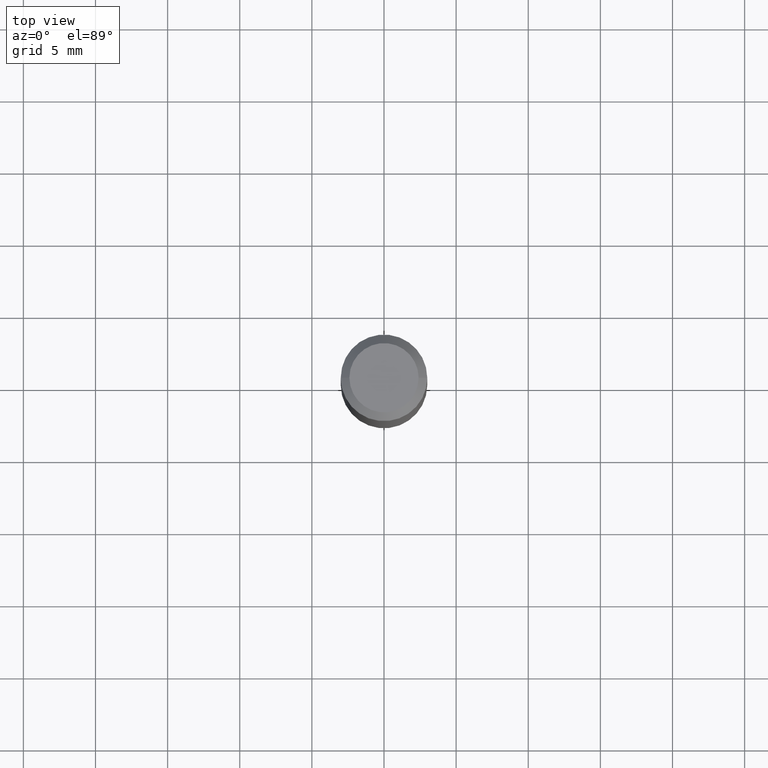
[diagram: clean part render]
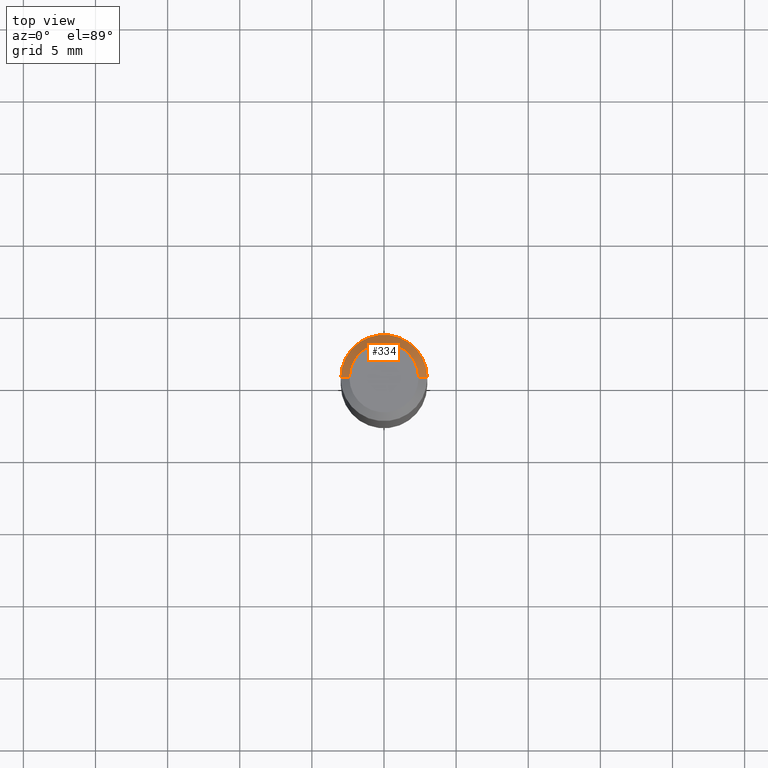
[diagram: same view with one face highlighted and labeled with its STEP entity id]
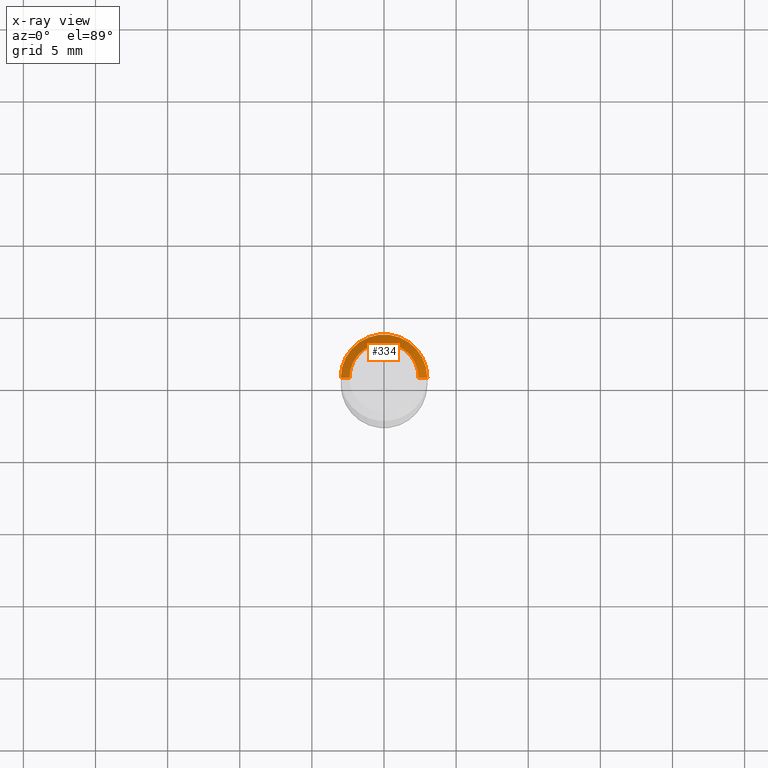
[diagram: x-ray of the same camera — body ghosted, the highlighted face saturated]
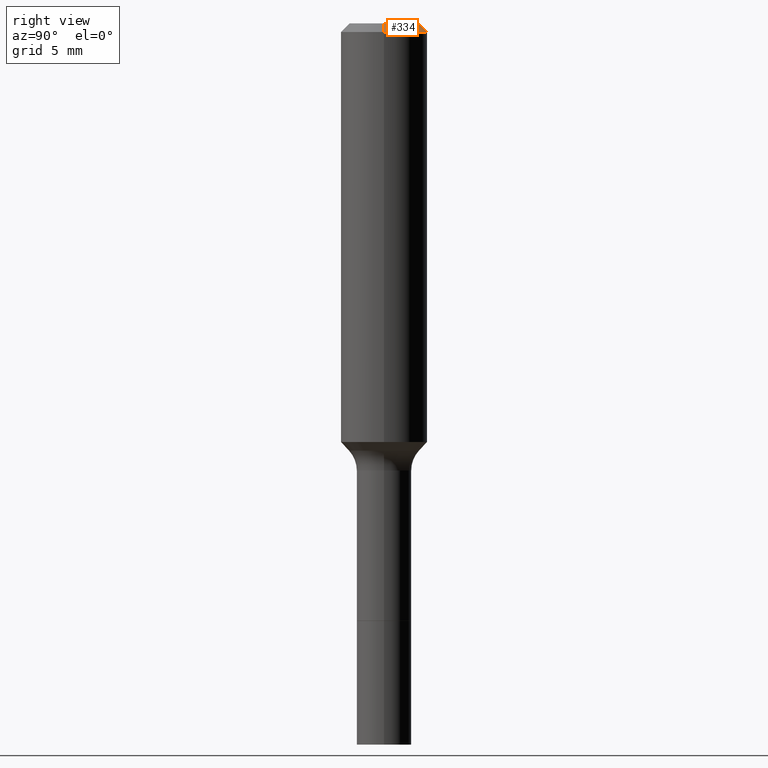
[diagram: same view with one face highlighted and labeled with its STEP entity id]
A machine part, top view. The second image highlights one B-rep face of the part: STEP entity #334.
The next image is the same camera in x-ray: the body ghosted, the highlighted face saturated — about 0% of this face is hidden behind the body in this view.
A second angle (right view) of the same face is appended — the face is thin or edge-on in the first view.
In plain terms, the highlighted conical surface has half-angle 45 deg.
Its self-contained STEP definition (entity closure, byte-faithful):
#10 = ORIENTED_EDGE ( 'NONE', *, *, #16, .T. ) ;
#13 = EDGE_CURVE ( 'NONE', #159, #407, #219, .T. ) ;
#16 = EDGE_CURVE ( 'NONE', #35, #407, #396, .T. ) ;
#20 = AXIS2_PLACEMENT_3D ( 'NONE', #429, #151, #378 ) ;
#23 = DIRECTION ( 'NONE',  ( -2.445468806185136597E-29, 3.491481338843145583E-15, 1.000000000000000000 ) ) ;
#35 = VERTEX_POINT ( 'NONE', #288 ) ;
#73 = AXIS2_PLACEMENT_3D ( 'NONE', #140, #23, #216 ) ;
#78 = FACE_OUTER_BOUND ( 'NONE', #163, .T. ) ;
#97 = DIRECTION ( 'NONE',  ( -0.7071067811865461294, 2.468850131082242072E-15, -0.7071067811865489050 ) ) ;
#107 = CIRCLE ( 'NONE', #20, 0.09447999999999998066 ) ;
#109 = CONICAL_SURFACE ( 'NONE', #409, 0.1180999999999999966, 0.7853981633974463916 ) ;
#140 = CARTESIAN_POINT ( 'NONE',  ( 5.776197320209327532E-31, -8.246878922347559293E-17, -0.02362000000000014088 ) ) ;
#151 = DIRECTION ( 'NONE',  ( -2.445468806185136597E-29, 3.491481338843145583E-15, 1.000000000000000000 ) ) ;
#158 = DIRECTION ( 'NONE',  ( 2.445468806185136597E-29, -3.491481338843145583E-15, -1.000000000000000000 ) ) ;
#159 = VERTEX_POINT ( 'NONE', #466 ) ;
#163 = EDGE_LOOP ( 'NONE', ( #403, #373, #10, #406 ) ) ;
#168 = CARTESIAN_POINT ( 'NONE',  ( 0.09447999999999998066, -7.704367267948738690E-16, -3.085620075131172158E-17 ) ) ;
#176 = EDGE_CURVE ( 'NONE', #285, #159, #107, .T. ) ;
#191 = DIRECTION ( 'NONE',  ( -1.000000000000000000, 6.982962677686266711E-15, 0.000000000000000000 ) ) ;
#216 = DIRECTION ( 'NONE',  ( 1.000000000000000000, -6.982962677686266711E-15, 0.000000000000000000 ) ) ;
#219 = LINE ( 'NONE', #495, #485 ) ;
#231 = CARTESIAN_POINT ( 'NONE',  ( 0.1180999999999999966, -8.926936027602933910E-16, -0.02362000000000014088 ) ) ;
#246 = CARTESIAN_POINT ( 'NONE',  ( -0.1180999999999999966, -1.196592100734989792E-15, -0.02362000000000014088 ) ) ;
#268 = DIRECTION ( 'NONE',  ( 0.7071067811865461294, -7.319954787623251312E-15, -0.7071067811865489050 ) ) ;
#285 = VERTEX_POINT ( 'NONE', #168 ) ;
#288 = CARTESIAN_POINT ( 'NONE',  ( 0.1180999999999999966, -9.071566814582237199E-16, -0.02362000000000014088 ) ) ;
#334 = ADVANCED_FACE ( 'NONE', ( #78 ), #109, .T. ) ;
#344 = LINE ( 'NONE', #231, #389 ) ;
#373 = ORIENTED_EDGE ( 'NONE', *, *, #454, .T. ) ;
#378 = DIRECTION ( 'NONE',  ( 1.000000000000000000, -6.982962677686267499E-15, 4.875432709231658792E-29 ) ) ;
#389 = VECTOR ( 'NONE', #268, 39.37007874015748143 ) ;
#396 = CIRCLE ( 'NONE', #73, 0.1180999999999999966 ) ;
#403 = ORIENTED_EDGE ( 'NONE', *, *, #176, .F. ) ;
#406 = ORIENTED_EDGE ( 'NONE', *, *, #13, .F. ) ;
#407 = VERTEX_POINT ( 'NONE', #246 ) ;
#409 = AXIS2_PLACEMENT_3D ( 'NONE', #484, #158, #191 ) ;
#429 = CARTESIAN_POINT ( 'NONE',  ( 7.545787641473140628E-46, -1.077338491108201769E-31, -3.085620075131671975E-17 ) ) ;
#454 = EDGE_CURVE ( 'NONE', #285, #35, #344, .T. ) ;
#466 = CARTESIAN_POINT ( 'NONE',  ( -0.09447999999999998066, 7.009847083995354710E-16, -3.085620075132147757E-17 ) ) ;
#484 = CARTESIAN_POINT ( 'NONE',  ( 5.776197320209327532E-31, -8.246878922347559293E-17, -0.02362000000000014088 ) ) ;
#485 = VECTOR ( 'NONE', #97, 39.37007874015748143 ) ;
#495 = CARTESIAN_POINT ( 'NONE',  ( -0.1180999999999999966, 7.422191030112725094E-16, -0.02362000000000014088 ) ) ;